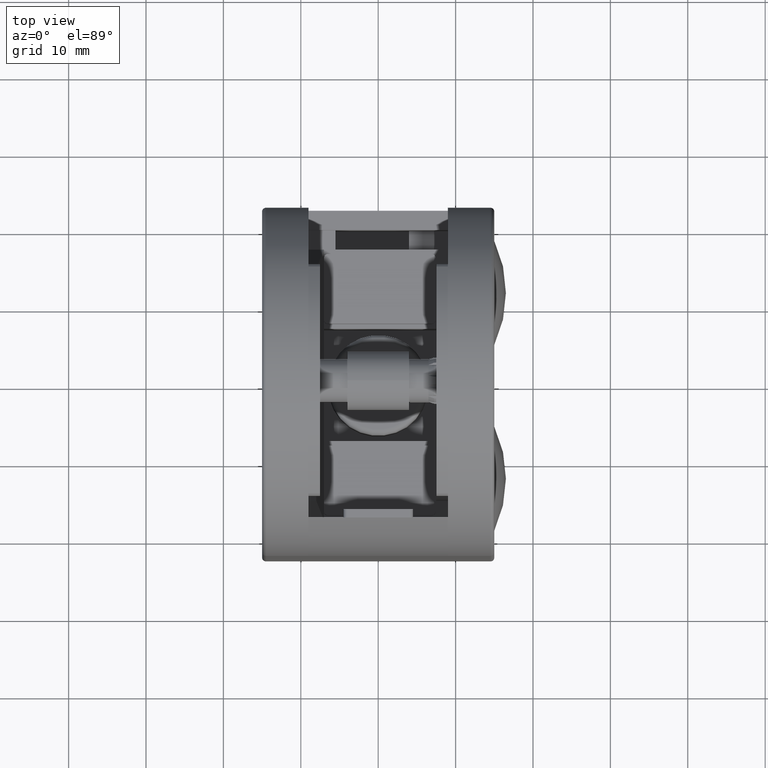
[diagram: clean part render]
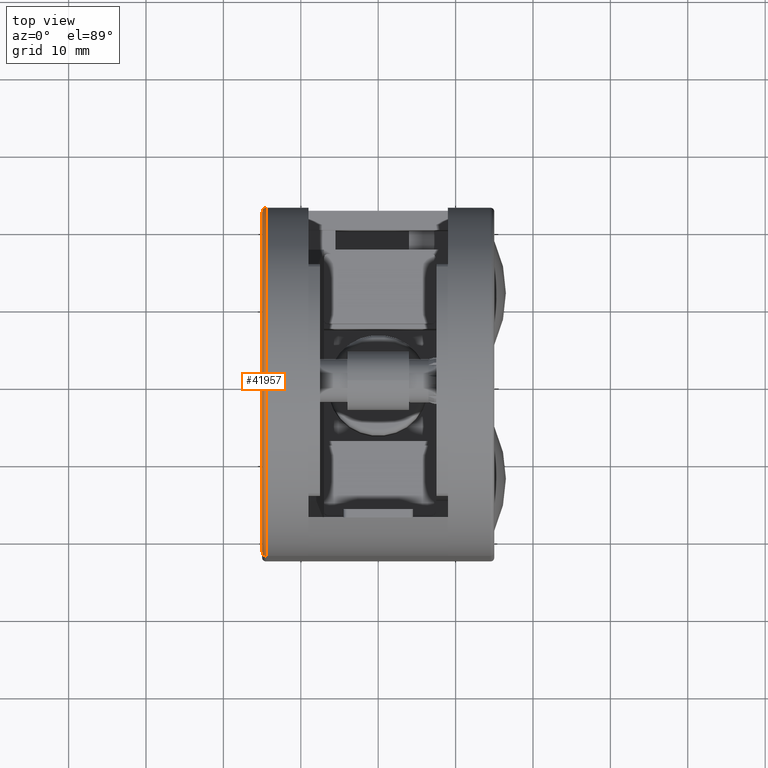
[diagram: same view with one face highlighted and labeled with its STEP entity id]
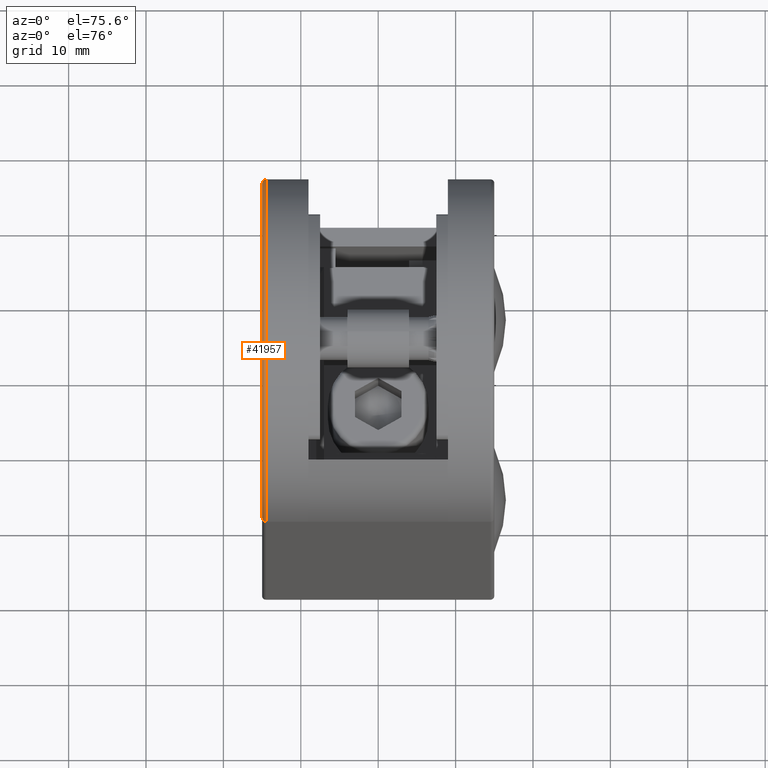
[diagram: same view with one face highlighted and labeled with its STEP entity id]
A machine part, top view. The second image highlights one B-rep face of the part: STEP entity #41957.
A second angle (auxiliary view) of the same face is appended — the face is thin or edge-on in the first view.
In plain terms, the highlighted toroidal blend (fillet) surface has major radius 22 mm and minor (blend) radius 0.5 mm.
Its self-contained STEP definition (entity closure, byte-faithful):
#3300 = CARTESIAN_POINT ( 'NONE',  ( 0.5000000000000004441, -6.654304323386755867E-15, 40.49999999999997868 ) ) ;
#5346 = CARTESIAN_POINT ( 'NONE',  ( 0.5000000000000004441, 22.00000000000000711, 40.49999999999998579 ) ) ;
#7122 = CIRCLE ( 'NONE', #23325, 22.50000000000001421 ) ;
#8217 = EDGE_CURVE ( 'NONE', #49240, #21043, #7122, .T. ) ;
#10134 = AXIS2_PLACEMENT_3D ( 'NONE', #60555, #66970, #11356 ) ;
#11356 = DIRECTION ( 'NONE',  ( 0.000000000000000000, 0.000000000000000000, -1.000000000000000000 ) ) ;
#11404 = AXIS2_PLACEMENT_3D ( 'NONE', #72839, #79617, #86703 ) ;
#11690 = EDGE_LOOP ( 'NONE', ( #74671, #40431, #33139, #53623 ) ) ;
#14314 = DIRECTION ( 'NONE',  ( 0.000000000000000000, 0.000000000000000000, -1.000000000000000000 ) ) ;
#17310 = DIRECTION ( 'NONE',  ( 1.000000000000000000, 0.000000000000000000, 0.000000000000000000 ) ) ;
#21043 = VERTEX_POINT ( 'NONE', #78620 ) ;
#21771 = FACE_OUTER_BOUND ( 'NONE', #11690, .T. ) ;
#23325 = AXIS2_PLACEMENT_3D ( 'NONE', #69852, #27642, #14314 ) ;
#23684 = VERTEX_POINT ( 'NONE', #73019 ) ;
#25122 = CIRCLE ( 'NONE', #10134, 22.00000000000001421 ) ;
#27642 = DIRECTION ( 'NONE',  ( 1.000000000000000000, 0.000000000000000000, 0.000000000000000000 ) ) ;
#33139 = ORIENTED_EDGE ( 'NONE', *, *, #80319, .F. ) ;
#40431 = ORIENTED_EDGE ( 'NONE', *, *, #44144, .F. ) ;
#41957 = ADVANCED_FACE ( 'NONE', ( #21771 ), #64795, .T. ) ;
#43332 = CARTESIAN_POINT ( 'NONE',  ( 0.000000000000000000, -22.00000000000002132, 40.49999999999998579 ) ) ;
#43386 = EDGE_CURVE ( 'NONE', #49240, #23684, #86955, .T. ) ;
#44144 = EDGE_CURVE ( 'NONE', #73700, #23684, #25122, .T. ) ;
#49240 = VERTEX_POINT ( 'NONE', #67790 ) ;
#52183 = DIRECTION ( 'NONE',  ( 0.000000000000000000, 0.000000000000000000, -1.000000000000000000 ) ) ;
#53623 = ORIENTED_EDGE ( 'NONE', *, *, #8217, .F. ) ;
#54204 = DIRECTION ( 'NONE',  ( 0.000000000000000000, -0.000000000000000000, 1.000000000000000000 ) ) ;
#58068 = AXIS2_PLACEMENT_3D ( 'NONE', #3300, #17310, #52183 ) ;
#60555 = CARTESIAN_POINT ( 'NONE',  ( 0.000000000000000000, -6.654304323386755867E-15, 40.49999999999997868 ) ) ;
#64795 = TOROIDAL_SURFACE ( 'NONE', #58068, 22.00000000000001421, 0.5000000000000000000 ) ;
#66970 = DIRECTION ( 'NONE',  ( -1.000000000000000000, -0.000000000000000000, -0.000000000000000000 ) ) ;
#67790 = CARTESIAN_POINT ( 'NONE',  ( 0.5000000000000004441, 22.50000000000000711, 40.49999999999998579 ) ) ;
#69852 = CARTESIAN_POINT ( 'NONE',  ( 0.5000000000000004441, -6.654304323386755867E-15, 40.49999999999997868 ) ) ;
#71681 = AXIS2_PLACEMENT_3D ( 'NONE', #5346, #54204, #74843 ) ;
#72839 = CARTESIAN_POINT ( 'NONE',  ( 0.5000000000000004441, -22.00000000000002132, 40.49999999999998579 ) ) ;
#73019 = CARTESIAN_POINT ( 'NONE',  ( 0.000000000000000000, 22.00000000000000711, 40.49999999999998579 ) ) ;
#73700 = VERTEX_POINT ( 'NONE', #43332 ) ;
#74671 = ORIENTED_EDGE ( 'NONE', *, *, #43386, .T. ) ;
#74843 = DIRECTION ( 'NONE',  ( 1.000000000000000000, 0.000000000000000000, 0.000000000000000000 ) ) ;
#78620 = CARTESIAN_POINT ( 'NONE',  ( 0.5000000000000004441, -22.50000000000002132, 40.49999999999998579 ) ) ;
#79617 = DIRECTION ( 'NONE',  ( -0.000000000000000000, -0.000000000000000000, -1.000000000000000000 ) ) ;
#80319 = EDGE_CURVE ( 'NONE', #21043, #73700, #81690, .T. ) ;
#81690 = CIRCLE ( 'NONE', #11404, 0.5000000000000000000 ) ;
#86703 = DIRECTION ( 'NONE',  ( -1.000000000000000000, 0.000000000000000000, 0.000000000000000000 ) ) ;
#86955 = CIRCLE ( 'NONE', #71681, 0.5000000000000000000 ) ;